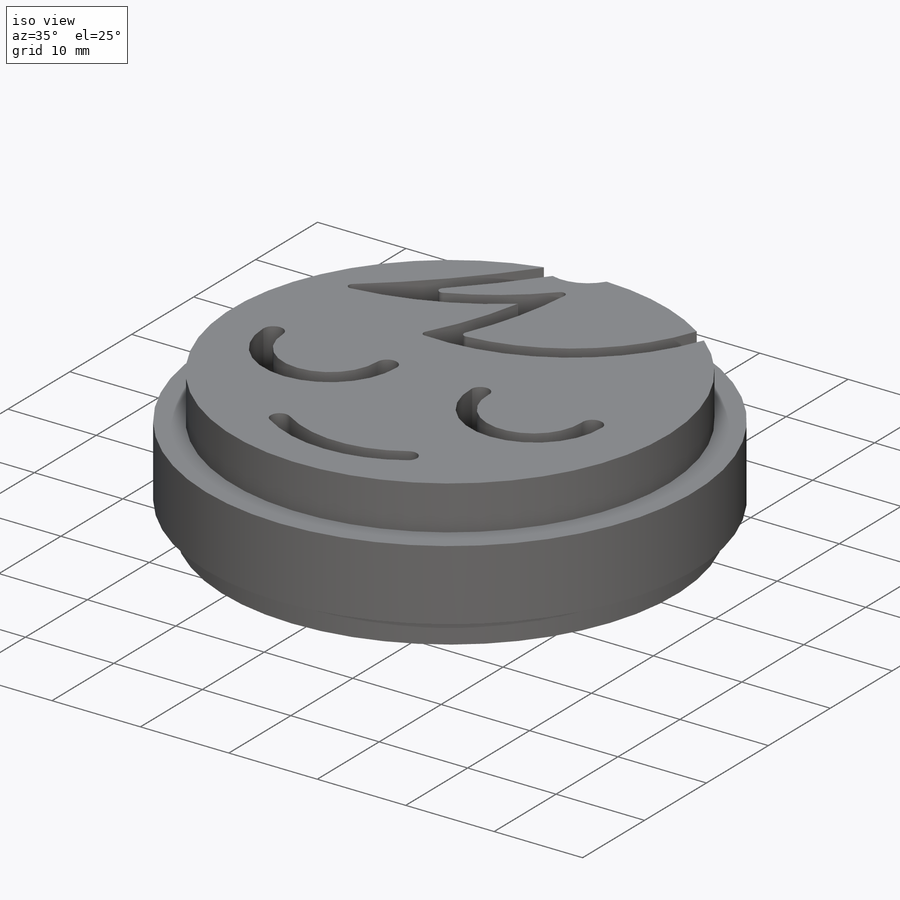
[diagram: iso view]
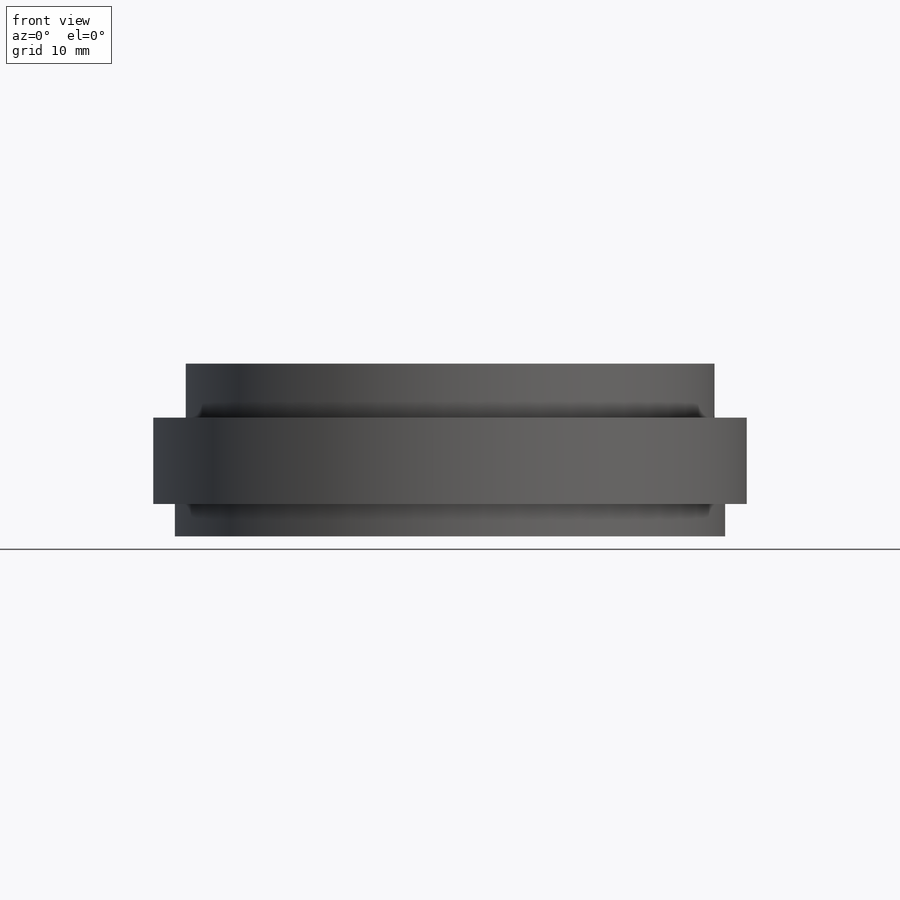
[diagram: front view]
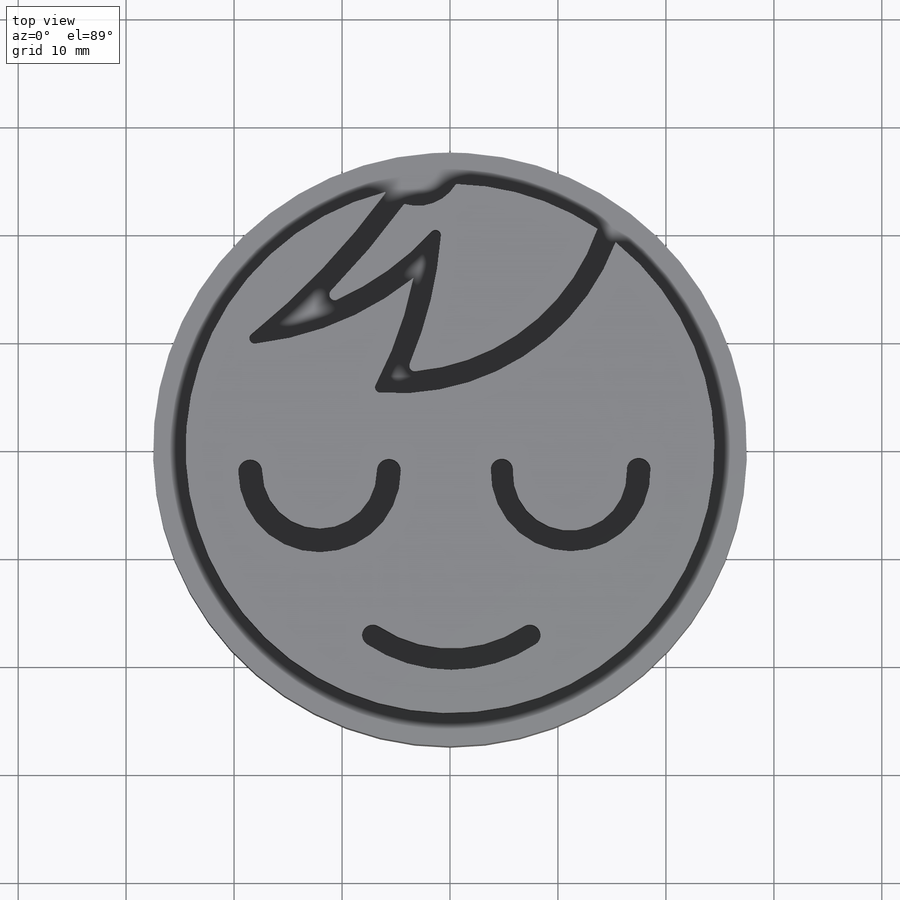
[diagram: top view]
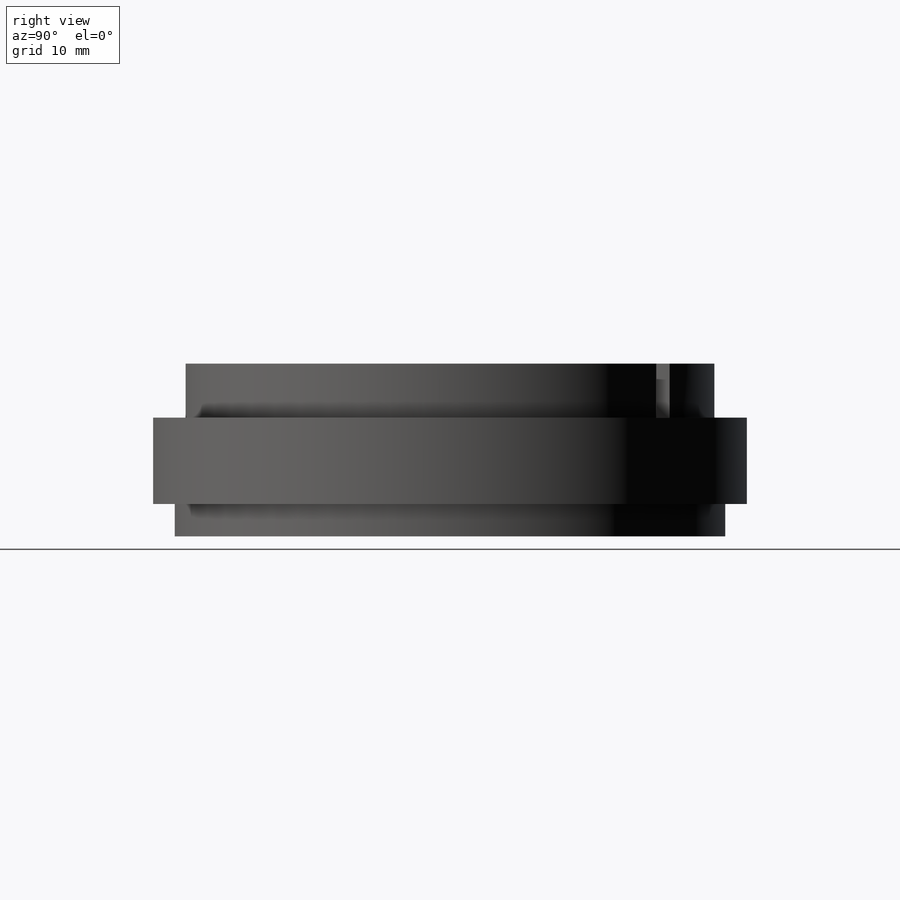
[diagram: right view]
SOLIDWORKS PART (.sldprt)
format: sldprt  version: not decoded by parser v0  size: 359,936 bytes
history: native  units: mm
features: sketch x4, plane x3, extrude x3, material x1, cut_extrude x1 (+10 scaffold rows collapsed)
feature tree (22):
  scaffold x10  (default folders/planes/origin — collapsed)
  material  "Material <sin especificar>"
  plane  "Alzado"
  plane  "Planta"
  plane  "Vista lateral"
  sketch  "Croquis1"  dims[c1.D1=59.0mm c1.D5=0.5mm c1.D6=0.5mm c1.D7=59.0mm c2.D1=55.0mm c2.D7=12.0mm c2.D8=12.0mm c3.D1=55.0mm c3.D2=2.0mm c3.D3=2.0mm c3.D4=3.0mm]
  extrude  "Saliente-Extruir1"  Depth=5mm
  sketch  "Croquis2"  dims[D1=55.0mm]
  extrude  "Saliente-Extruir2"  Depth=8mm
  sketch  "Croquis3"  dims[D1=51.0mm D2=48.0mm D3=1.0mm]
  extrude  "Saliente-Extruir3"  Depth=3mm
  sketch  "Croquis4"
  cut_extrude  "Cortar-Extruir1"  Depth=3mm
decode coverage: 7 of 8 modeling features carry decoded parameters
note: suppression state not decoded; provenance and decode notes live in map.json
